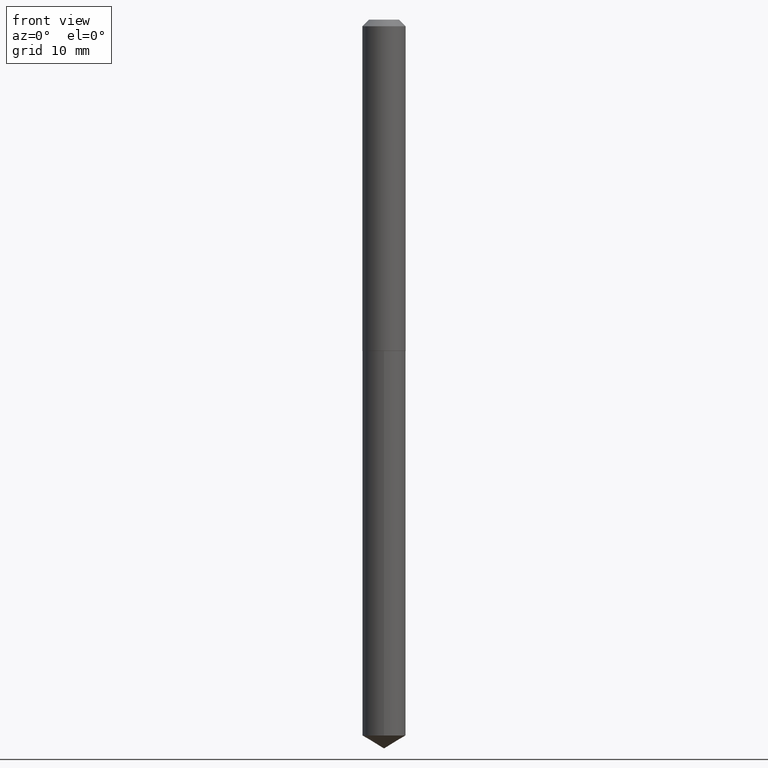
[diagram: clean part render]
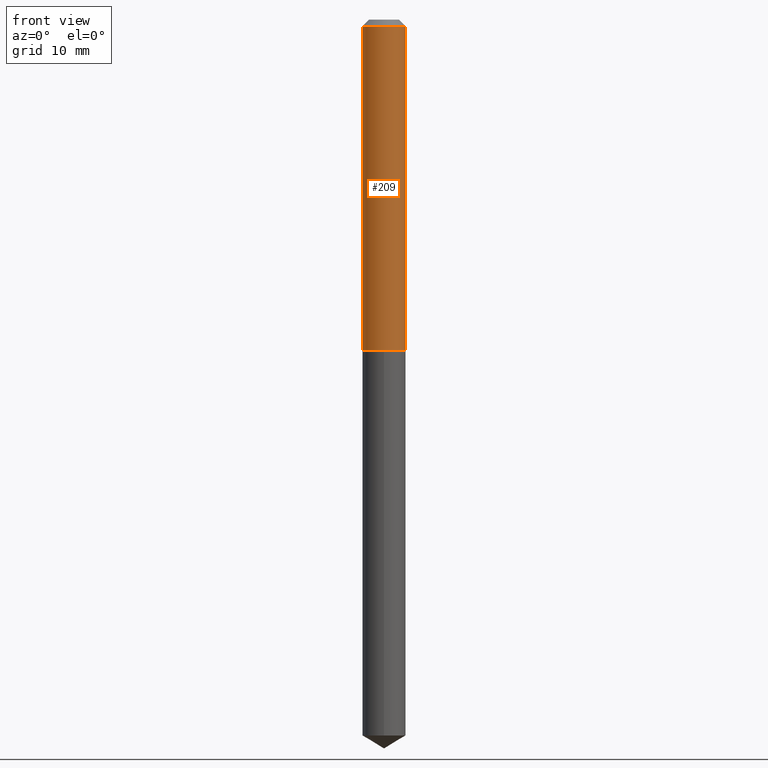
[diagram: same view with one face highlighted and labeled with its STEP entity id]
A machine part, front view. The second image highlights one B-rep face of the part: STEP entity #209.
In plain terms, the highlighted cylindrical surface (edge-blend (fillet) strip) has radius 2.5502 mm, axis along (-0, 0, 1).
Its self-contained STEP definition (entity closure, byte-faithful):
#17 = LINE ( 'NONE', #164, #54 ) ;
#26 = DIRECTION ( 'NONE',  ( -2.445468806185136597E-29, 3.491481338843145583E-15, 1.000000000000000000 ) ) ;
#38 = ORIENTED_EDGE ( 'NONE', *, *, #166, .T. ) ;
#48 = CARTESIAN_POINT ( 'NONE',  ( -0.1004000000000000031, -2.027689805389141589E-15, -0.03125000000000020817 ) ) ;
#50 = LINE ( 'NONE', #227, #255 ) ;
#52 = CYLINDRICAL_SURFACE ( 'NONE', #372, 0.1004000000000000864 ) ;
#54 = VECTOR ( 'NONE', #280, 39.37007874015748143 ) ;
#55 = CARTESIAN_POINT ( 'NONE',  ( 0.1004000000000000031, -8.101982446785502760E-16, -0.03125000000000020817 ) ) ;
#76 = DIRECTION ( 'NONE',  ( -2.445468806185136877E-29, 3.491481338843145188E-15, 1.000000000000000000 ) ) ;
#99 = DIRECTION ( 'NONE',  ( -2.445468806185136597E-29, 3.491481338843145583E-15, 1.000000000000000000 ) ) ;
#105 = CARTESIAN_POINT ( 'NONE',  ( 3.763331945838307250E-29, -5.373040632345718254E-15, -1.538900000000000379 ) ) ;
#109 = DIRECTION ( 'NONE',  ( 1.000000000000000000, -6.982962677686266711E-15, 0.000000000000000000 ) ) ;
#114 = CARTESIAN_POINT ( 'NONE',  ( 0.1004000000000001835, -6.074130085185420909E-15, -1.538900000000000379 ) ) ;
#151 = VERTEX_POINT ( 'NONE', #48 ) ;
#160 = EDGE_CURVE ( 'NONE', #188, #270, #271, .T. ) ;
#164 = CARTESIAN_POINT ( 'NONE',  ( -0.1004000000000000864, 7.133849067031412005E-16, -4.938610830615929898E-30 ) ) ;
#166 = EDGE_CURVE ( 'NONE', #270, #302, #50, .T. ) ;
#171 = CARTESIAN_POINT ( 'NONE',  ( 0.000000000000000000, 0.000000000000000000, 0.000000000000000000 ) ) ;
#172 = CARTESIAN_POINT ( 'NONE',  ( 7.642090019328602662E-31, -1.091087918388490267E-16, -0.03125000000000020817 ) ) ;
#176 = EDGE_CURVE ( 'NONE', #188, #151, #17, .T. ) ;
#188 = VERTEX_POINT ( 'NONE', #380 ) ;
#203 = AXIS2_PLACEMENT_3D ( 'NONE', #172, #266, #109 ) ;
#209 = ADVANCED_FACE ( 'NONE', ( #388 ), #52, .T. ) ;
#221 = EDGE_CURVE ( 'NONE', #151, #302, #317, .T. ) ;
#227 = CARTESIAN_POINT ( 'NONE',  ( 0.1004000000000000864, -7.010894528397017670E-16, 4.895681482899124059E-30 ) ) ;
#255 = VECTOR ( 'NONE', #76, 39.37007874015748143 ) ;
#266 = DIRECTION ( 'NONE',  ( -2.445468806185136597E-29, 3.491481338843145583E-15, 1.000000000000000000 ) ) ;
#270 = VERTEX_POINT ( 'NONE', #114 ) ;
#271 = CIRCLE ( 'NONE', #291, 0.1004000000000001835 ) ;
#280 = DIRECTION ( 'NONE',  ( -2.445468806185136877E-29, 3.491481338843145188E-15, 1.000000000000000000 ) ) ;
#287 = DIRECTION ( 'NONE',  ( 1.000000000000000000, -6.982962677686266711E-15, 4.876176775795936353E-29 ) ) ;
#290 = ORIENTED_EDGE ( 'NONE', *, *, #160, .T. ) ;
#291 = AXIS2_PLACEMENT_3D ( 'NONE', #105, #99, #350 ) ;
#302 = VERTEX_POINT ( 'NONE', #55 ) ;
#317 = CIRCLE ( 'NONE', #203, 0.1004000000000000031 ) ;
#328 = ORIENTED_EDGE ( 'NONE', *, *, #176, .F. ) ;
#331 = EDGE_LOOP ( 'NONE', ( #328, #290, #38, #366 ) ) ;
#350 = DIRECTION ( 'NONE',  ( 1.000000000000000000, -6.982962677686269866E-15, 0.000000000000000000 ) ) ;
#366 = ORIENTED_EDGE ( 'NONE', *, *, #221, .F. ) ;
#372 = AXIS2_PLACEMENT_3D ( 'NONE', #171, #26, #287 ) ;
#380 = CARTESIAN_POINT ( 'NONE',  ( -0.1004000000000001835, -4.659655725642575772E-15, -1.538900000000000379 ) ) ;
#388 = FACE_OUTER_BOUND ( 'NONE', #331, .T. ) ;